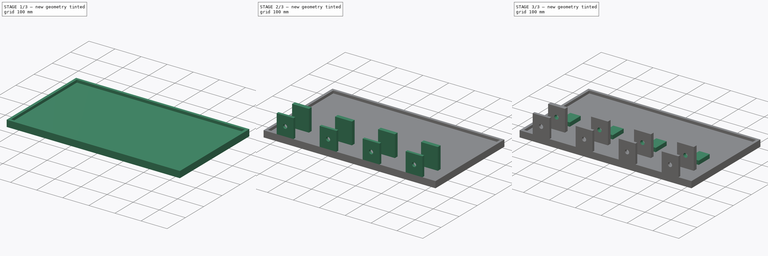
[diagram: build sequence overview — one tinted view per stage of 3, left to right]
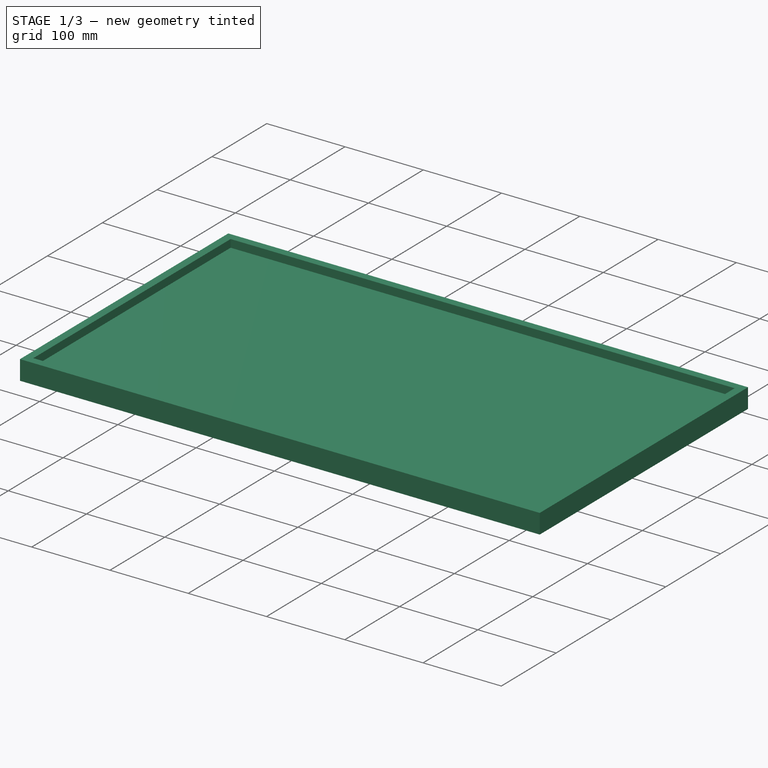
[diagram: stage 1 of 3 — iso view after this stage's code; geometry added in this stage tinted green]
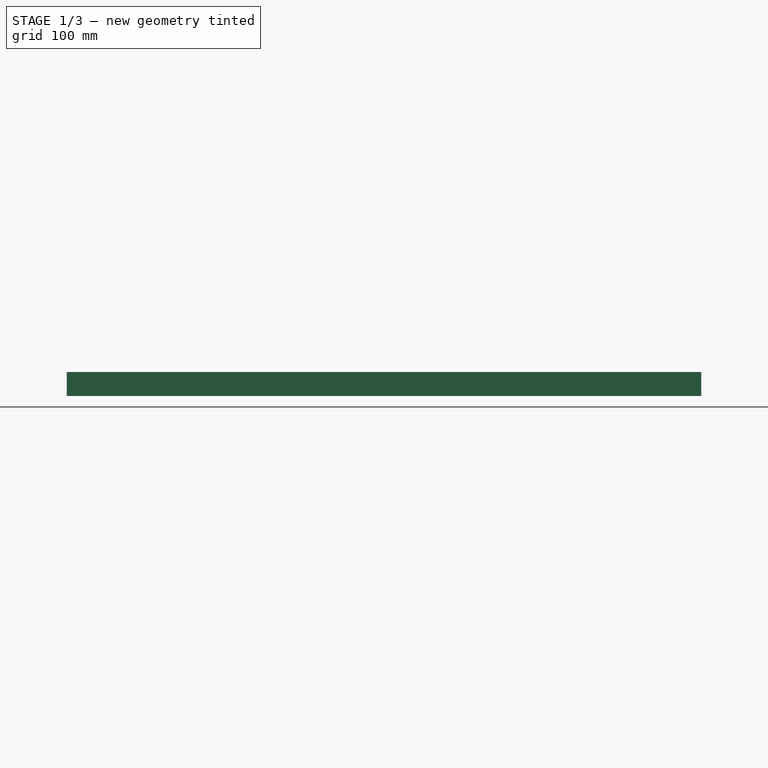
[diagram: stage 1 of 3 — front view after this stage's code; geometry added in this stage tinted green]
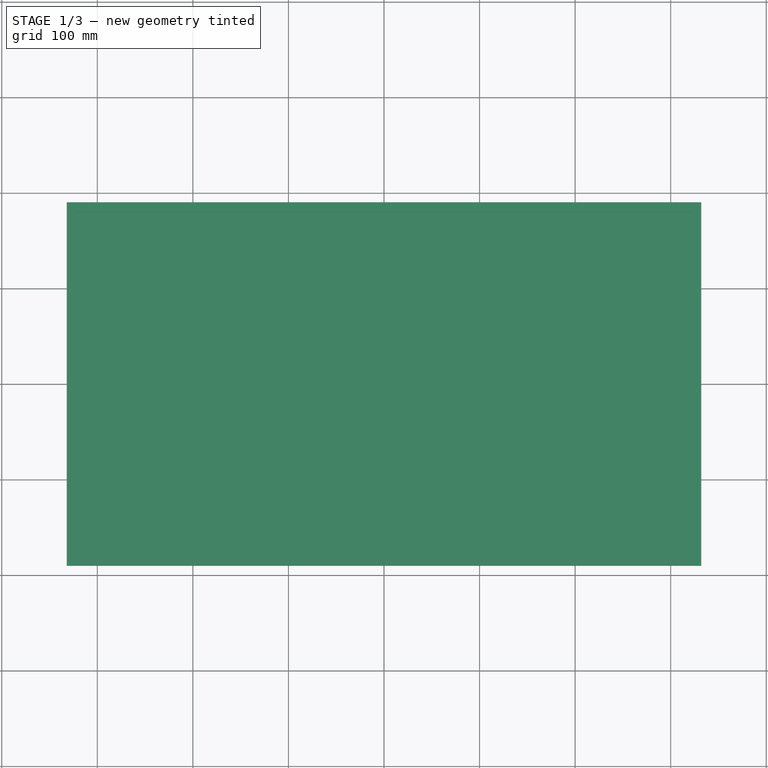
[diagram: stage 1 of 3 — top view after this stage's code; geometry added in this stage tinted green]
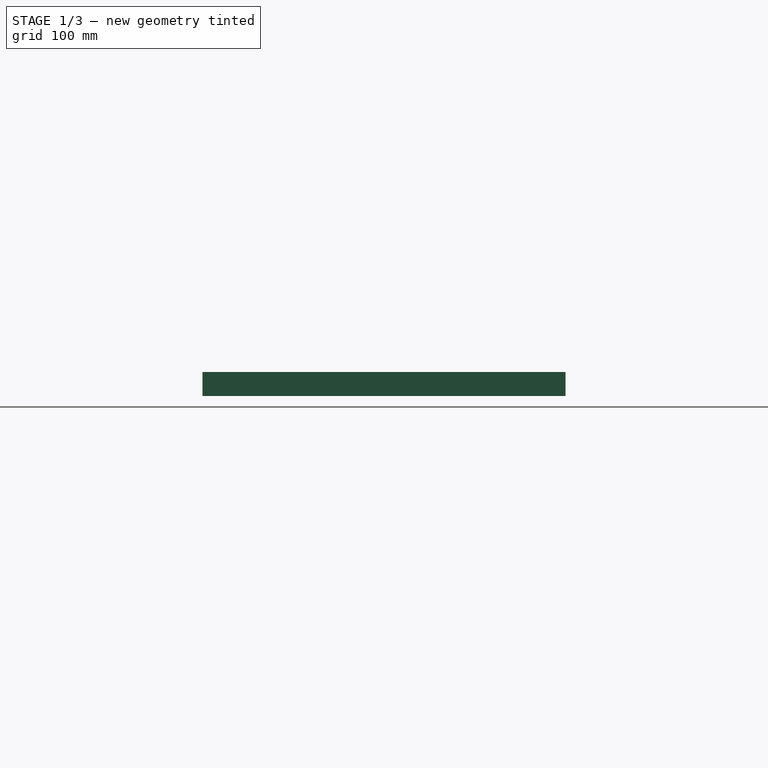
[diagram: stage 1 of 3 — right view after this stage's code; geometry added in this stage tinted green]
FCSTD DOCUMENT  (FreeCAD 1.0R39285 (Git))
Label: FinishedFourStickController-Open
License: All rights reserved
LicenseURL: https://en.wikipedia.org/wiki/All_rights_reserved
objects: Sketcher::SketchObject×7, PartDesign::Pad×4, PartDesign::Pocket×3, PartDesign::Body×1
note: 36 computed .brp shape members not serialized (recipe doc carries the construction recipe); baked Part::Feature solids carry a one-line shape summary decoded from their .brp

FEATURE [Sketcher::SketchObject] Sketch
  ArcFitTolerance = 1e-06
  AttachmentSupport = -> [XY_Plane]
  FullyConstrained = true
  MakeInternals = false
  MapMode = 5
  sketch-geometry (5):
    g0: LineSegment StartX=-332 StartY=-190 StartZ=0 EndX=332 EndY=-190 EndZ=0
    g1: LineSegment StartX=332 StartY=-190 StartZ=0 EndX=332 EndY=190 EndZ=0
    g2: LineSegment StartX=332 StartY=190 StartZ=0 EndX=-332 EndY=190 EndZ=0
    g3: LineSegment StartX=-332 StartY=190 StartZ=0 EndX=-332 EndY=-190 EndZ=0
    g4: GeomPoint [constr] X=0 Y=0 Z=0
  constraints (12):
    c: Coincident(g0,g1)
    c: Coincident(g1,g2)
    c: Coincident(g2,g3)
    c: Coincident(g3,g0)
    c: Horizontal(g0)
    c: Horizontal(g2)
    c: Vertical(g1)
    c: Vertical(g3)
    c: Symmetric(g2,g0,g4)
    c: Distance(g1,g3) = 664
    c: Distance(g0,g2) = 380
    c: Coincident(g4,g-1)
FEATURE [PartDesign::Pad] Pad
  Direction = (0,0,1)
  Length = 25
  Length2 = 10
  Profile = -> Sketch
  ReferenceAxis = -> Sketch [N_Axis]
  Refine = true
  Suppressed = false
  Type = 0
FEATURE [Sketcher::SketchObject] Sketch001
  ArcFitTolerance = 1e-06
  AttachmentSupport = -> [Pad]
  FullyConstrained = true
  MakeInternals = false
  MapMode = 5
  Placement = pos=(0,0,25) rot=(0,0,1;0rad)
  sketch-geometry (5):
    g0: LineSegment StartX=-322 StartY=-180 StartZ=0 EndX=322 EndY=-180 EndZ=0
    g1: LineSegment StartX=322 StartY=-180 StartZ=0 EndX=322 EndY=180 EndZ=0
    g2: LineSegment StartX=322 StartY=180 StartZ=0 EndX=-322 EndY=180 EndZ=0
    g3: LineSegment StartX=-322 StartY=180 StartZ=0 EndX=-322 EndY=-180 EndZ=0
    g4: GeomPoint [constr] X=0 Y=0 Z=0
  constraints (12):
    c: Coincident(g0,g1)
    c: Coincident(g1,g2)
    c: Coincident(g2,g3)
    c: Coincident(g3,g0)
    c: Horizontal(g0)
    c: Horizontal(g2)
    c: Vertical(g1)
    c: Vertical(g3)
    c: Symmetric(g2,g0,g4)
    c: Distance(g1,g3) = 644
    c: Distance(g0,g2) = 360
    c: Coincident(g4,g-1)
FEATURE [PartDesign::Pocket] Pocket
  BaseFeature = -> Pad
  Direction = (0,0,-1)
  Length = 10
  Length2 = 5
  Profile = -> Sketch001
  ReferenceAxis = -> Sketch001 [N_Axis]
  Refine = true
  Suppressed = false
  Type = 0
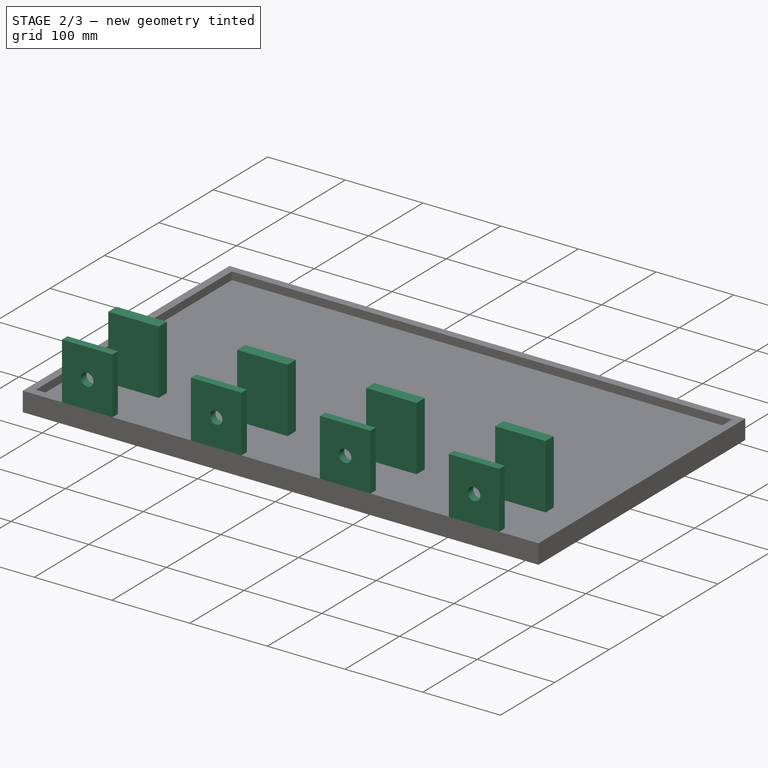
[diagram: stage 2 of 3 — iso view after this stage's code; geometry added in this stage tinted green]
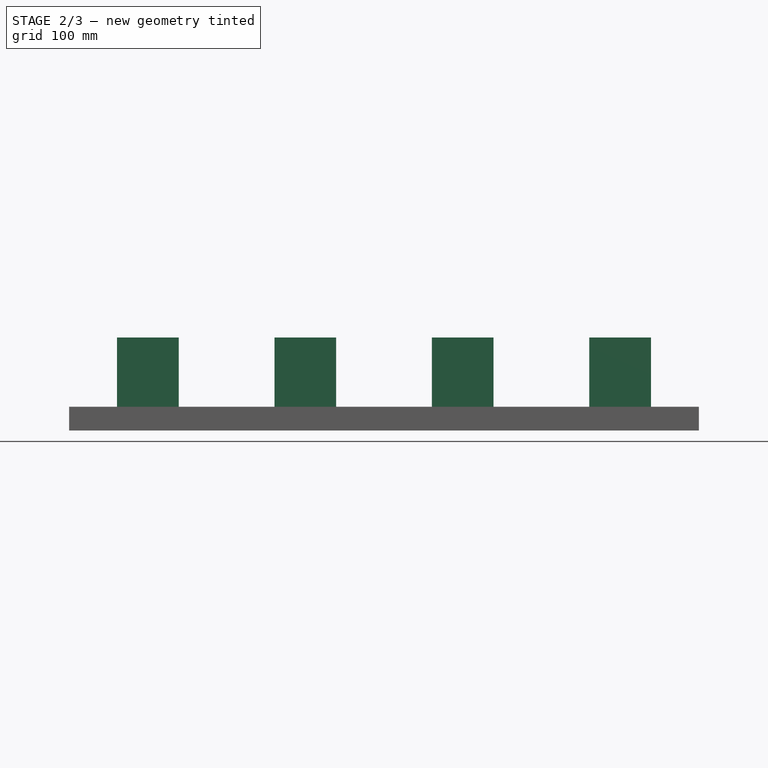
[diagram: stage 2 of 3 — front view after this stage's code; geometry added in this stage tinted green]
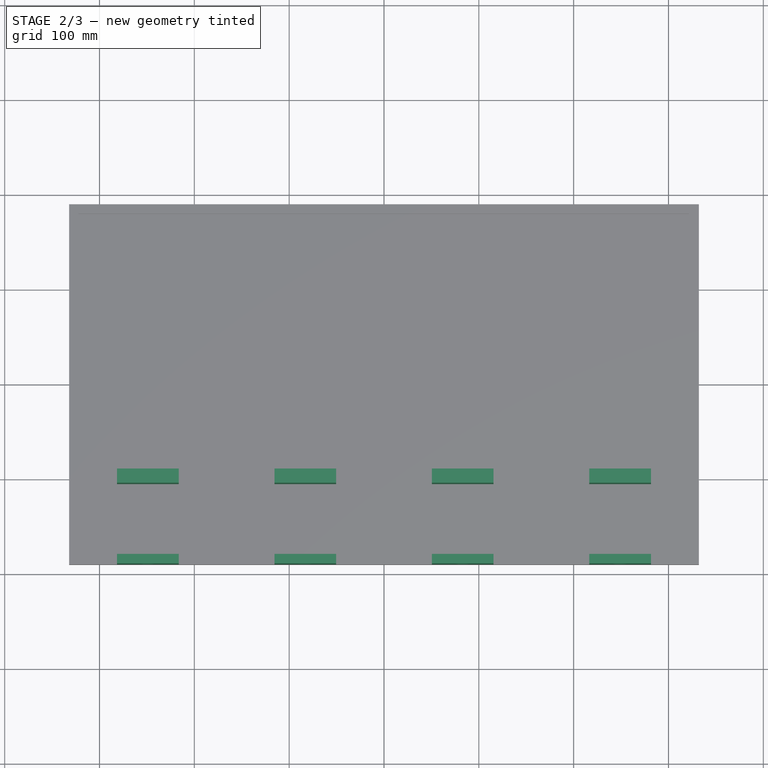
[diagram: stage 2 of 3 — top view after this stage's code; geometry added in this stage tinted green]
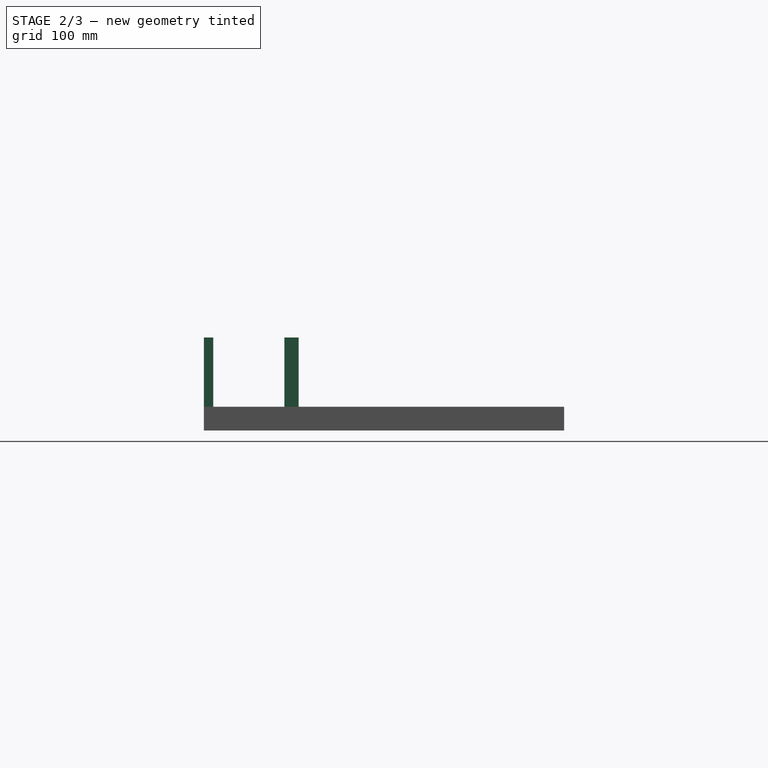
[diagram: stage 2 of 3 — right view after this stage's code; geometry added in this stage tinted green]
FEATURE [Sketcher::SketchObject] Sketch002
  ArcFitTolerance = 1e-06
  AttachmentSupport = -> [Pocket]
  FullyConstrained = false
  MakeInternals = false
  MapMode = 5
  Placement = pos=(0,0,25) rot=(0,0,1;0rad)
  sketch-geometry (21):
    g0: GeomPoint [constr] X=0 Y=0 Z=0
    g1: LineSegment StartX=-281.5 StartY=-190 StartZ=0 EndX=-216.5 EndY=-190 EndZ=0
    g2: LineSegment StartX=-216.5 StartY=-190 StartZ=0 EndX=-216.5 EndY=-180 EndZ=0
    g3: LineSegment StartX=-216.5 StartY=-180 StartZ=0 EndX=-281.5 EndY=-180 EndZ=0
    g4: LineSegment StartX=-281.5 StartY=-180 StartZ=0 EndX=-281.5 EndY=-190 EndZ=0
    g5: GeomPoint [constr] X=-249 Y=-185 Z=0
    g6: LineSegment StartX=-115.5 StartY=-190 StartZ=0 EndX=-50.5 EndY=-190 EndZ=0
    g7: LineSegment StartX=-50.5 StartY=-190 StartZ=0 EndX=-50.5 EndY=-180 EndZ=0
    g8: LineSegment StartX=-50.5 StartY=-180 StartZ=0 EndX=-115.5 EndY=-180 EndZ=0
    g9: LineSegment StartX=-115.5 StartY=-180 StartZ=0 EndX=-115.5 EndY=-190 EndZ=0
    g10: GeomPoint [constr] X=-83 Y=-185 Z=0
    g11: LineSegment StartX=50.5 StartY=-190 StartZ=0 EndX=115.5 EndY=-190 EndZ=0
    g12: LineSegment StartX=115.5 StartY=-190 StartZ=0 EndX=115.5 EndY=-180 EndZ=0
    g13: LineSegment StartX=115.5 StartY=-180 StartZ=0 EndX=50.5 EndY=-180 EndZ=0
    g14: LineSegment StartX=50.5 StartY=-180 StartZ=0 EndX=50.5 EndY=-190 EndZ=0
    g15: GeomPoint [constr] X=83 Y=-185 Z=0
    g16: LineSegment StartX=216.5 StartY=-190 StartZ=0 EndX=281.5 EndY=-190 EndZ=0
    g17: LineSegment StartX=281.5 StartY=-190 StartZ=0 EndX=281.5 EndY=-180 EndZ=0
    g18: LineSegment StartX=281.5 StartY=-180 StartZ=0 EndX=216.5 EndY=-180 EndZ=0
    g19: LineSegment StartX=216.5 StartY=-180 StartZ=0 EndX=216.5 EndY=-190 EndZ=0
    g20: GeomPoint [constr] X=249 Y=-185 Z=0
  constraints (44):
    c: Coincident(g1,g2)
    c: Coincident(g2,g3)
    c: Coincident(g3,g4)
    c: Coincident(g4,g1)
    c: Horizontal(g1)
    c: Horizontal(g3)
    c: Vertical(g2)
    c: Vertical(g4)
    c: Symmetric(g3,g1,g5)
    c: Distance(g2,g4) = 65
    c: Distance(g1,g3) = 10
    c: Coincident(g6,g7)
    c: Coincident(g7,g8)
    c: Coincident(g8,g9)
    c: Coincident(g9,g6)
    c: Horizontal(g6)
    c: Horizontal(g8)
    c: Vertical(g7)
    c: Vertical(g9)
    c: Symmetric(g8,g6,g10)
    c: Distance(g7,g9) = 65
    c: Distance(g6,g8) = 10
    c: Coincident(g11,g12)
    c: Coincident(g12,g13)
    c: Coincident(g13,g14)
    c: Coincident(g14,g11)
    c: Horizontal(g11)
    c: Horizontal(g13)
    c: Vertical(g12)
    c: Vertical(g14)
    c: Symmetric(g13,g11,g15)
    c: Distance(g12,g14) = 65
    c: Distance(g11,g13) = 10
    c: Coincident(g16,g17)
    c: Coincident(g17,g18)
    c: Coincident(g18,g19)
    c: Coincident(g19,g16)
    c: Horizontal(g16)
    c: Horizontal(g18)
    c: Vertical(g17)
    c: Vertical(g19)
    c: Symmetric(g18,g16,g20)
    c: Distance(g17,g19) = 65
    c: Distance(g16,g18) = 10
FEATURE [PartDesign::Pad] Pad001
  BaseFeature = -> Pocket
  Direction = (0,0,1)
  Length = 73
  Length2 = 10
  Profile = -> Sketch002
  ReferenceAxis = -> Sketch002 [N_Axis]
  Refine = true
  Suppressed = false
  Type = 0
FEATURE [Sketcher::SketchObject] Sketch003
  ArcFitTolerance = 1e-06
  AttachmentSupport = -> [Pad001]
  FullyConstrained = false
  MakeInternals = false
  MapMode = 5
  Placement = pos=(0,-190,0) rot=(1,0,0;1.5708rad)
  sketch-geometry (4):
    g0: Circle CenterX=249 CenterY=60 CenterZ=0 NormalX=0 NormalY=0 NormalZ=1 AngleXU=0 Radius=8
    g1: Circle CenterX=83 CenterY=60 CenterZ=0 NormalX=0 NormalY=0 NormalZ=1 AngleXU=0 Radius=8
    g2: Circle CenterX=-83 CenterY=60 CenterZ=0 NormalX=0 NormalY=0 NormalZ=1 AngleXU=0 Radius=8
    g3: Circle CenterX=-249 CenterY=60 CenterZ=0 NormalX=0 NormalY=0 NormalZ=1 AngleXU=0 Radius=8
  constraints (4):
    c: Diameter(g0) = 16
    c: Diameter(g1) = 16
    c: Diameter(g2) = 16
    c: Diameter(g3) = 16
FEATURE [PartDesign::Pocket] Pocket001
  BaseFeature = -> Pad001
  Direction = (0,1,-2e-16)
  Length = 10
  Length2 = 5
  Profile = -> Sketch003
  ReferenceAxis = -> Sketch003 [N_Axis]
  Refine = true
  Suppressed = false
  Type = 0
FEATURE [Sketcher::SketchObject] Sketch004
  ArcFitTolerance = 1e-06
  AttachmentSupport = -> [Pocket001]
  FullyConstrained = false
  MakeInternals = false
  MapMode = 5
  Placement = pos=(0,0,15) rot=(0,0,1;0rad)
  sketch-geometry (21):
    g0: LineSegment StartX=216.5 StartY=-105 StartZ=0 EndX=281.5 EndY=-105 EndZ=0
    g1: LineSegment StartX=281.5 StartY=-105 StartZ=0 EndX=281.5 EndY=-90 EndZ=0
    g2: LineSegment StartX=281.5 StartY=-90 StartZ=0 EndX=216.5 EndY=-90 EndZ=0
    g3: LineSegment StartX=216.5 StartY=-90 StartZ=0 EndX=216.5 EndY=-105 EndZ=0
    g4: GeomPoint [constr] X=249 Y=-97.5 Z=0
    g5: LineSegment StartX=50.5 StartY=-105 StartZ=0 EndX=115.5 EndY=-105 EndZ=0
    g6: LineSegment StartX=115.5 StartY=-105 StartZ=0 EndX=115.5 EndY=-90 EndZ=0
    g7: LineSegment StartX=115.5 StartY=-90 StartZ=0 EndX=50.5 EndY=-90 EndZ=0
    g8: LineSegment StartX=50.5 StartY=-90 StartZ=0 EndX=50.5 EndY=-105 EndZ=0
    g9: GeomPoint [constr] X=83 Y=-97.5 Z=0
    g10: GeomPoint [constr] X=-83 Y=-97.5 Z=0
    g11: LineSegment StartX=-281.5 StartY=-105 StartZ=0 EndX=-216.5 EndY=-105 EndZ=0
    g12: LineSegment StartX=-216.5 StartY=-105 StartZ=0 EndX=-216.5 EndY=-90 EndZ=0
    g13: LineSegment StartX=-216.5 StartY=-90 StartZ=0 EndX=-281.5 EndY=-90 EndZ=0
    g14: LineSegment StartX=-281.5 StartY=-90 StartZ=0 EndX=-281.5 EndY=-105 EndZ=0
    g15: GeomPoint [constr] X=-249 Y=-97.5 Z=0
    g16: LineSegment StartX=-115.5 StartY=-105 StartZ=0 EndX=-50.5 EndY=-105 EndZ=0
    g17: LineSegment StartX=-50.5 StartY=-105 StartZ=0 EndX=-50.5 EndY=-90 EndZ=0
    g18: LineSegment StartX=-50.5 StartY=-90 StartZ=0 EndX=-115.5 EndY=-90 EndZ=0
    g19: LineSegment StartX=-115.5 StartY=-90 StartZ=0 EndX=-115.5 EndY=-105 EndZ=0
    g20: GeomPoint [constr] X=-83 Y=-97.5 Z=0
  constraints (45):
    c: Coincident(g0,g1)
    c: Coincident(g1,g2)
    c: Coincident(g2,g3)
    c: Coincident(g3,g0)
    c: Horizontal(g0)
    c: Horizontal(g2)
    c: Vertical(g1)
    c: Vertical(g3)
    c: Symmetric(g2,g0,g4)
    c: Distance(g1,g3) = 65
    c: Distance(g0,g2) = 15
    c: Coincident(g5,g6)
    c: Coincident(g6,g7)
    c: Coincident(g7,g8)
    c: Coincident(g8,g5)
    c: Horizontal(g5)
    c: Horizontal(g7)
    c: Vertical(g6)
    c: Vertical(g8)
    c: Symmetric(g7,g5,g9)
    c: Distance(g6,g8) = 65
    c: Distance(g5,g7) = 15
    c: Coincident(g11,g12)
    c: Coincident(g12,g13)
    c: Coincident(g13,g14)
    c: Coincident(g14,g11)
    c: Horizontal(g11)
    c: Horizontal(g13)
    c: Vertical(g12)
    c: Vertical(g14)
    c: Symmetric(g13,g11,g15)
    c: Distance(g12,g14) = 65
    c: Distance(g11,g13) = 15
    c: Coincident(g16,g17)
    c: Coincident(g17,g18)
    c: Coincident(g18,g19)
    c: Coincident(g19,g16)
    c: Horizontal(g16)
    c: Horizontal(g18)
    c: Vertical(g17)
    c: Vertical(g19)
    c: Symmetric(g18,g16,g20)
    c: Distance(g17,g19) = 65
    c: Distance(g16,g18) = 15
    c: Coincident(g20,g10)
FEATURE [Sketcher::SketchObject] Sketch005
  ArcFitTolerance = 1e-06
  FullyConstrained = false
  MakeInternals = false
  MapMode = 5
  Placement = pos=(0,-190,0) rot=(1,0,0;1.5708rad)
  sketch-geometry (4):
    g0: Circle CenterX=-249 CenterY=60 CenterZ=0 NormalX=0 NormalY=0 NormalZ=1 AngleXU=0 Radius=8
    g1: Circle CenterX=-83 CenterY=60 CenterZ=0 NormalX=0 NormalY=0 NormalZ=1 AngleXU=0 Radius=8
    g2: Circle CenterX=83 CenterY=60 CenterZ=0 NormalX=0 NormalY=0 NormalZ=1 AngleXU=0 Radius=8
    g3: Circle CenterX=249 CenterY=60 CenterZ=0 NormalX=0 NormalY=0 NormalZ=1 AngleXU=0 Radius=8
  constraints (4):
    c: Diameter(g0) = 16
    c: Diameter(g1) = 16
    c: Diameter(g2) = 16
    c: Diameter(g3) = 16
FEATURE [PartDesign::Pad] Pad002
  BaseFeature = -> Pocket001
  Direction = (0,0,1)
  Length = 83
  Length2 = 10
  Profile = -> Sketch004
  ReferenceAxis = -> Sketch004 [N_Axis]
  Refine = true
  Suppressed = false
  Type = 0
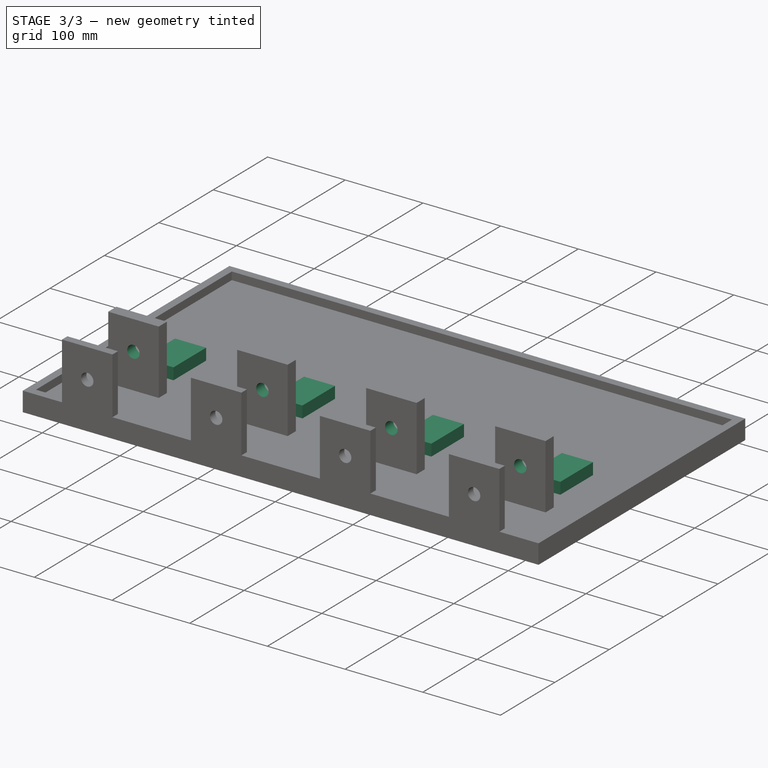
[diagram: stage 3 of 3 — iso view after this stage's code; geometry added in this stage tinted green]
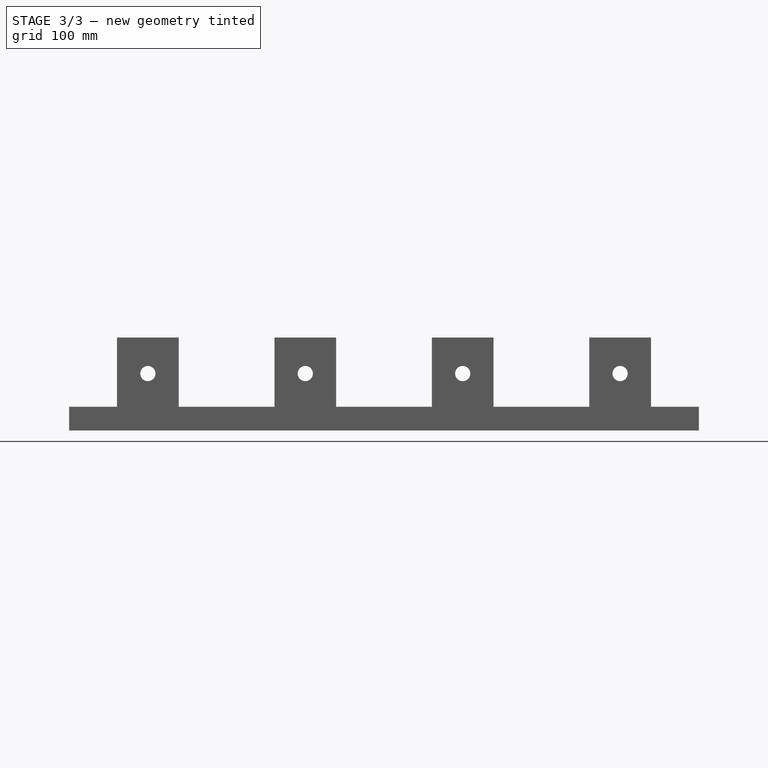
[diagram: stage 3 of 3 — front view after this stage's code; geometry added in this stage tinted green]
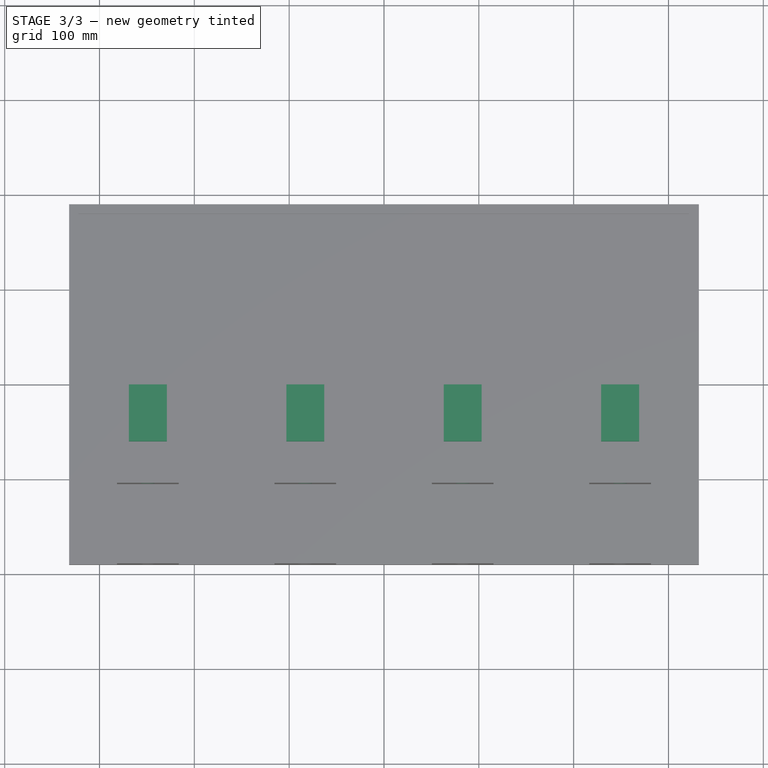
[diagram: stage 3 of 3 — top view after this stage's code; geometry added in this stage tinted green]
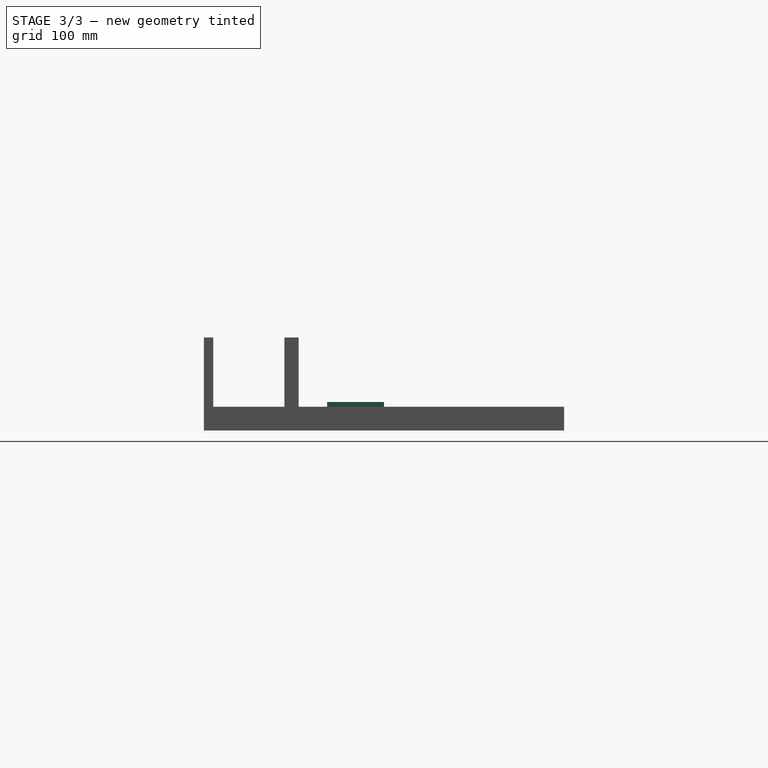
[diagram: stage 3 of 3 — right view after this stage's code; geometry added in this stage tinted green]
FEATURE [PartDesign::Pocket] Pocket002
  BaseFeature = -> Pad002
  Direction = (0,1,-2e-16)
  Length = 100
  Length2 = 5
  Profile = -> Sketch005
  ReferenceAxis = -> Sketch005 [N_Axis]
  Refine = true
  Suppressed = false
  Type = 0
FEATURE [Sketcher::SketchObject] Sketch006
  ArcFitTolerance = 1e-06
  AttachmentSupport = -> [Pocket002]
  FullyConstrained = false
  MakeInternals = false
  MapMode = 5
  Placement = pos=(0,0,15) rot=(0,0,1;0rad)
  sketch-geometry (20):
    g0: LineSegment StartX=-269 StartY=-60 StartZ=0 EndX=-229 EndY=-60 EndZ=0
    g1: LineSegment StartX=-229 StartY=-60 StartZ=0 EndX=-229 EndY=0 EndZ=0
    g2: LineSegment StartX=-229 StartY=0 StartZ=0 EndX=-269 EndY=0 EndZ=0
    g3: LineSegment StartX=-269 StartY=0 StartZ=0 EndX=-269 EndY=-60 EndZ=0
    g4: GeomPoint [constr] X=-249 Y=-30 Z=0
    g5: LineSegment StartX=-103 StartY=-60 StartZ=0 EndX=-63 EndY=-60 EndZ=0
    g6: LineSegment StartX=-63 StartY=-60 StartZ=0 EndX=-63 EndY=0 EndZ=0
    g7: LineSegment StartX=-63 StartY=0 StartZ=0 EndX=-103 EndY=0 EndZ=0
    g8: LineSegment StartX=-103 StartY=0 StartZ=0 EndX=-103 EndY=-60 EndZ=0
    g9: GeomPoint [constr] X=-83 Y=-30 Z=0
    g10: LineSegment StartX=63 StartY=-60 StartZ=0 EndX=103 EndY=-60 EndZ=0
    g11: LineSegment StartX=103 StartY=-60 StartZ=0 EndX=103 EndY=0 EndZ=0
    g12: LineSegment StartX=103 StartY=0 StartZ=0 EndX=63 EndY=0 EndZ=0
    g13: LineSegment StartX=63 StartY=0 StartZ=0 EndX=63 EndY=-60 EndZ=0
    g14: GeomPoint [constr] X=83 Y=-30 Z=0
    g15: LineSegment StartX=229 StartY=-60 StartZ=0 EndX=269 EndY=-60 EndZ=0
    g16: LineSegment StartX=269 StartY=-60 StartZ=0 EndX=269 EndY=0 EndZ=0
    g17: LineSegment StartX=269 StartY=0 StartZ=0 EndX=229 EndY=0 EndZ=0
    g18: LineSegment StartX=229 StartY=0 StartZ=0 EndX=229 EndY=-60 EndZ=0
    g19: GeomPoint [constr] X=249 Y=-30 Z=0
  constraints (44):
    c: Coincident(g0,g1)
    c: Coincident(g1,g2)
    c: Coincident(g2,g3)
    c: Coincident(g3,g0)
    c: Horizontal(g0)
    c: Horizontal(g2)
    c: Vertical(g1)
    c: Vertical(g3)
    c: Symmetric(g2,g0,g4)
    c: Distance(g1,g3) = 40
    c: PointOnObject(g1,g-1)
    c: Coincident(g5,g6)
    c: Coincident(g6,g7)
    c: Coincident(g7,g8)
    c: Coincident(g8,g5)
    c: Horizontal(g5)
    c: Horizontal(g7)
    c: Vertical(g6)
    c: Vertical(g8)
    c: Symmetric(g7,g5,g9)
    c: Distance(g6,g8) = 40
    c: PointOnObject(g6,g-1)
    c: Coincident(g10,g11)
    c: Coincident(g11,g12)
    c: Coincident(g12,g13)
    c: Coincident(g13,g10)
    c: Horizontal(g10)
    c: Horizontal(g12)
    c: Vertical(g11)
    c: Vertical(g13)
    c: Symmetric(g12,g10,g14)
    c: Distance(g11,g13) = 40
    c: PointOnObject(g11,g-1)
    c: Coincident(g15,g16)
    c: Coincident(g16,g17)
    c: Coincident(g17,g18)
    c: Coincident(g18,g15)
    c: Horizontal(g15)
    c: Horizontal(g17)
    c: Vertical(g16)
    c: Vertical(g18)
    c: Symmetric(g17,g15,g19)
    c: Distance(g16,g18) = 40
    c: PointOnObject(g16,g-1)
FEATURE [PartDesign::Pad] Pad003
  BaseFeature = -> Pocket002
  Direction = (0,0,1)
  Length = 15
  Length2 = 10
  Profile = -> Sketch006
  ReferenceAxis = -> Sketch006 [N_Axis]
  Refine = true
  Suppressed = false
  Type = 0
FEATURE [PartDesign::Body] Body  label="FinishedFourStickController-Open"
  AllowCompound = false
  Group = -> [Sketch,Pad,Sketch001,Pocket,Sketch002,Pad001,Sketch003,Pocket001,Sketch004,Sketch005,Pad002,Pocket002,Sketch006,Pad003]
  Origin = -> Origin
  Tip = -> Pad003
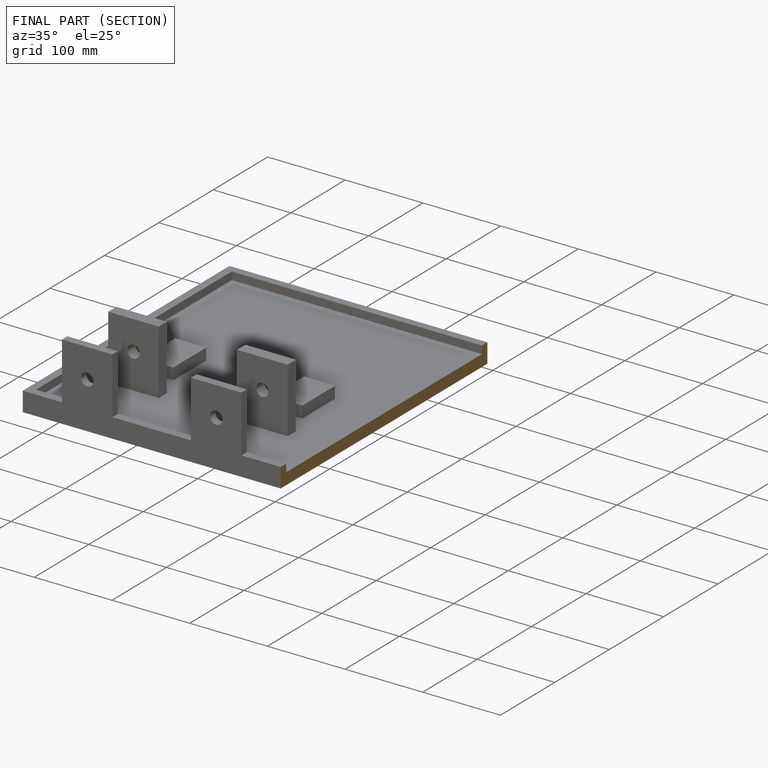
[diagram: finished part — half-section view (interior)]
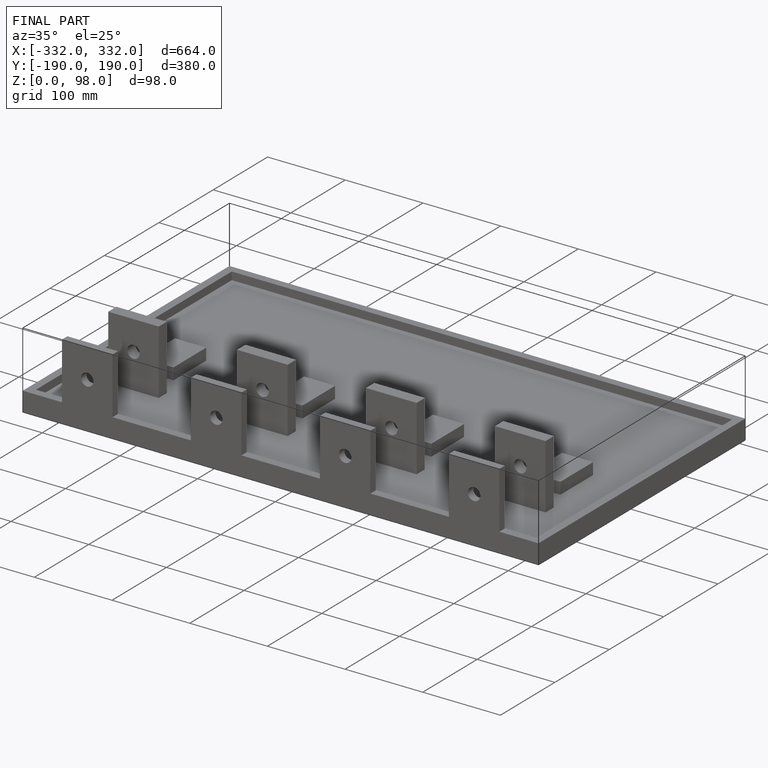
[diagram: finished part — iso view with bounding-box wireframe]
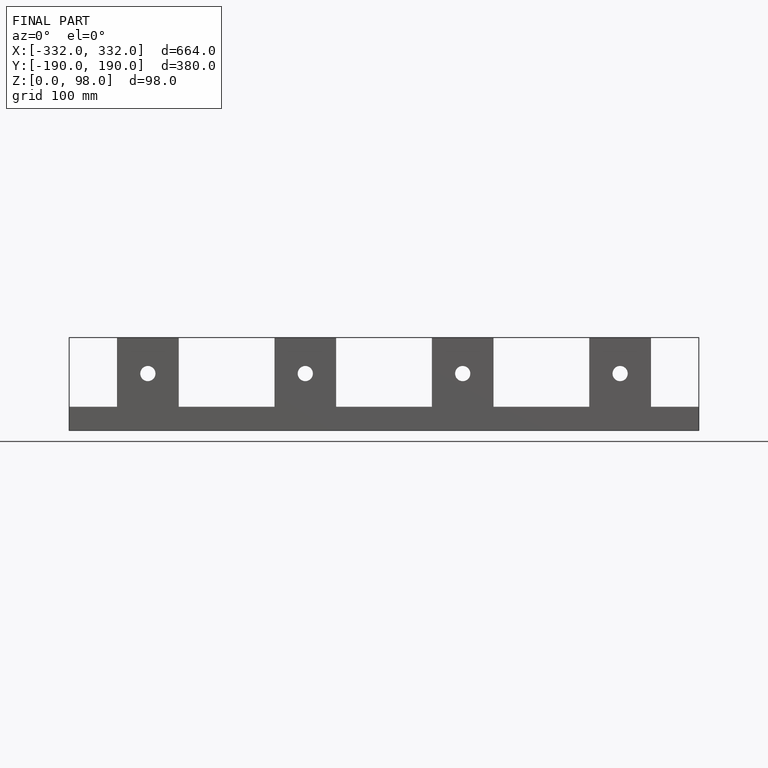
[diagram: finished part — front view with bounding-box wireframe]
